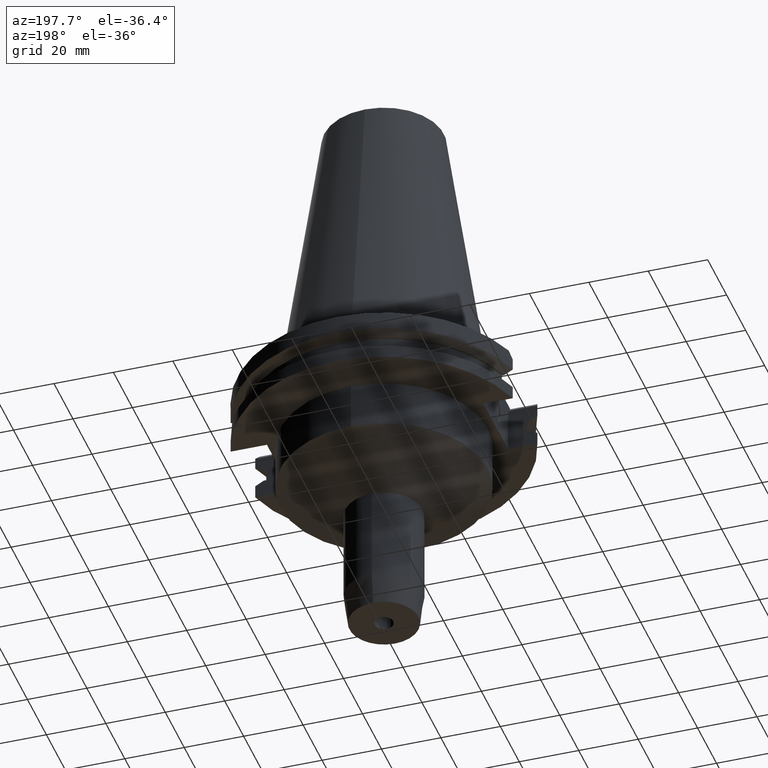
[diagram: clean part render]
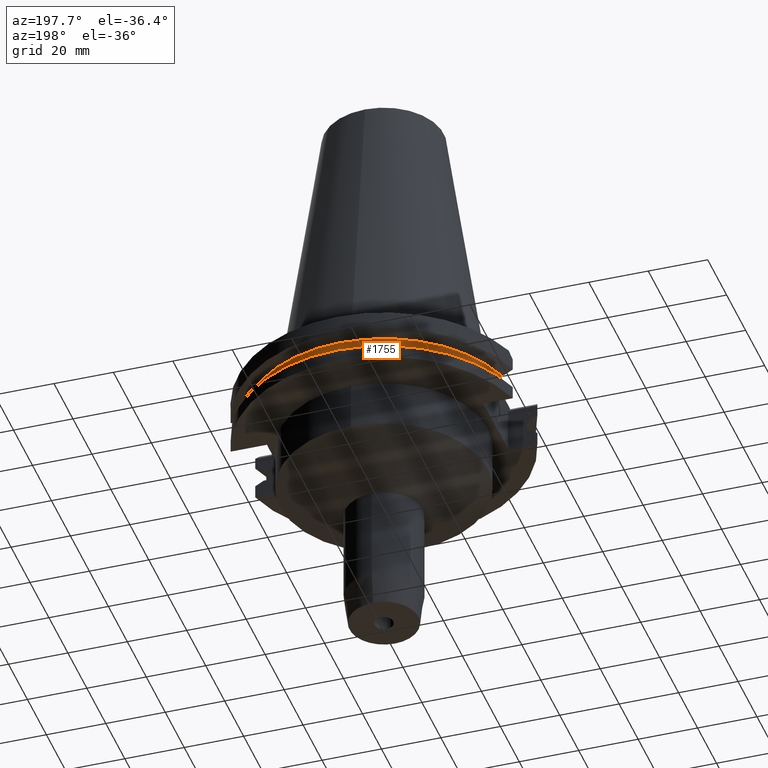
[diagram: same view with one face highlighted and labeled with its STEP entity id]
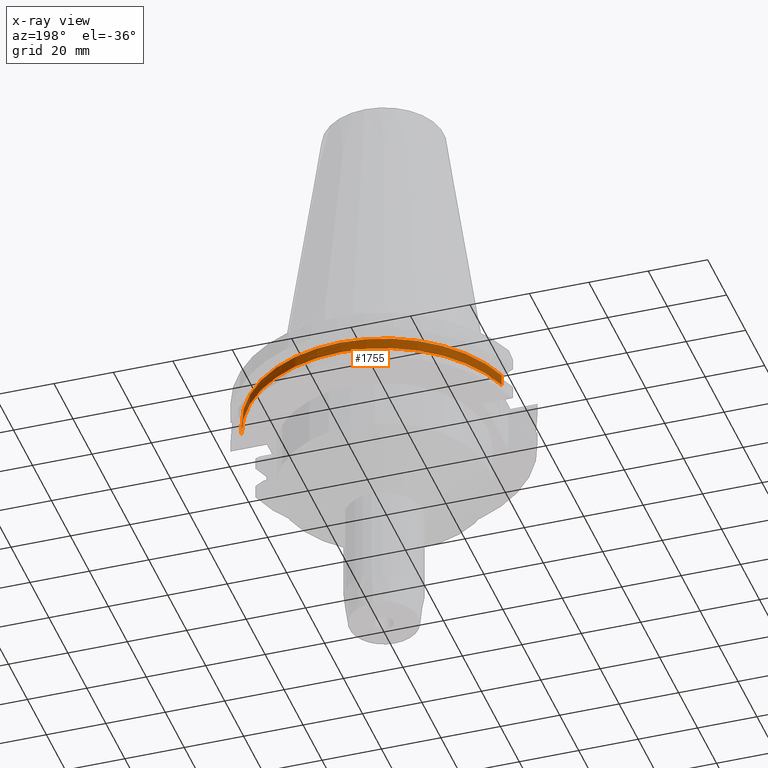
[diagram: x-ray of the same camera — body ghosted, the highlighted face saturated]
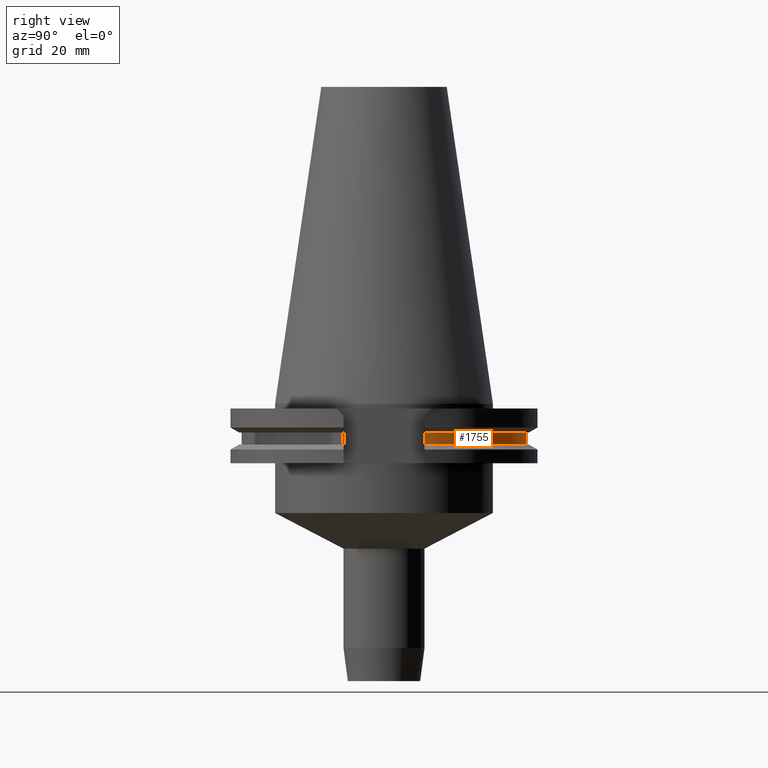
[diagram: same view with one face highlighted and labeled with its STEP entity id]
A machine part, auxiliary view. The second image highlights one B-rep face of the part: STEP entity #1755.
The next image is the same camera in x-ray: the body ghosted, the highlighted face saturated — about 0% of this face is hidden behind the body in this view.
A second angle (right view) of the same face is appended — the face is thin or edge-on in the first view.
In plain terms, the highlighted cylindrical surface (partial cylindrical patch) has radius 45.645 mm, axis along (0, 0, -1).
Its self-contained STEP definition (entity closure, byte-faithful):
#433=CARTESIAN_POINT('',(0.E0,2.585535554700E-14,-1.30475E1));
#434=DIRECTION('',(0.E0,0.E0,1.E0));
#435=DIRECTION('',(9.588773428655E-1,2.838207908862E-1,0.E0));
#436=AXIS2_PLACEMENT_3D('',#433,#434,#435);
#441=CARTESIAN_POINT('',(0.E0,2.585535554700E-14,-1.30475E1));
#442=DIRECTION('',(0.E0,0.E0,1.E0));
#443=DIRECTION('',(0.E0,1.E0,0.E0));
#444=AXIS2_PLACEMENT_3D('',#441,#442,#443);
#472=DIRECTION('',(0.E0,0.E0,1.E0));
#473=VECTOR('',#472,3.84E0);
#474=CARTESIAN_POINT('',(4.376795631509E1,1.2955E1,-1.30475E1));
#475=LINE('',#474,#473);
#479=DIRECTION('',(0.E0,0.E0,-1.E0));
#480=VECTOR('',#479,3.84E0);
#481=CARTESIAN_POINT('',(-4.376795631509E1,1.2955E1,-9.2075E0));
#482=LINE('',#481,#480);
#509=CARTESIAN_POINT('',(0.E0,2.585535554700E-14,-9.2075E0));
#510=DIRECTION('',(0.E0,0.E0,-1.E0));
#511=DIRECTION('',(-9.588773428655E-1,2.838207908862E-1,0.E0));
#512=AXIS2_PLACEMENT_3D('',#509,#510,#511);
#517=CARTESIAN_POINT('',(0.E0,2.585535554700E-14,-9.2075E0));
#518=DIRECTION('',(0.E0,0.E0,-1.E0));
#519=DIRECTION('',(0.E0,1.E0,0.E0));
#520=AXIS2_PLACEMENT_3D('',#517,#518,#519);
#1354=CARTESIAN_POINT('',(-4.376795631509E1,1.2955E1,-1.30475E1));
#1355=VERTEX_POINT('',#1354);
#1356=CARTESIAN_POINT('',(-4.376795631509E1,1.2955E1,-9.2075E0));
#1357=VERTEX_POINT('',#1356);
#1370=CARTESIAN_POINT('',(4.376795631509E1,1.2955E1,-1.30475E1));
#1371=VERTEX_POINT('',#1370);
#1372=CARTESIAN_POINT('',(3.016347127729E-14,4.5645E1,-1.30475E1));
#1373=VERTEX_POINT('',#1372);
#1376=CARTESIAN_POINT('',(4.376795631509E1,1.2955E1,-9.2075E0));
#1377=VERTEX_POINT('',#1376);
#1378=CARTESIAN_POINT('',(-3.016347127729E-14,4.5645E1,-9.2075E0));
#1379=VERTEX_POINT('',#1378);
#1740=CARTESIAN_POINT('',(0.E0,2.585535554700E-14,1.11125E2));
#1741=DIRECTION('',(0.E0,0.E0,-1.E0));
#1742=DIRECTION('',(0.E0,-1.E0,0.E0));
#1743=AXIS2_PLACEMENT_3D('',#1740,#1741,#1742);
#1744=CYLINDRICAL_SURFACE('',#1743,4.5645E1);
#1745=ORIENTED_EDGE('',*,*,#1587,.T.);
#1747=ORIENTED_EDGE('',*,*,#1746,.F.);
#1749=ORIENTED_EDGE('',*,*,#1748,.F.);
#1750=ORIENTED_EDGE('',*,*,#1680,.T.);
#1751=ORIENTED_EDGE('',*,*,#1732,.F.);
#1752=ORIENTED_EDGE('',*,*,#1730,.F.);
#1753=EDGE_LOOP('',(#1745,#1747,#1749,#1750,#1751,#1752));
#1754=FACE_OUTER_BOUND('',#1753,.F.);
#437=CIRCLE('',#436,4.5645E1);
#445=CIRCLE('',#444,4.5645E1);
#513=CIRCLE('',#512,4.5645E1);
#521=CIRCLE('',#520,4.5645E1);
#1587=EDGE_CURVE('',#1371,#1377,#475,.T.);
#1680=EDGE_CURVE('',#1357,#1355,#482,.T.);
#1730=EDGE_CURVE('',#1371,#1373,#437,.T.);
#1732=EDGE_CURVE('',#1373,#1355,#445,.T.);
#1746=EDGE_CURVE('',#1379,#1377,#521,.T.);
#1748=EDGE_CURVE('',#1357,#1379,#513,.T.);
#1755=ADVANCED_FACE('',(#1754),#1744,.T.);